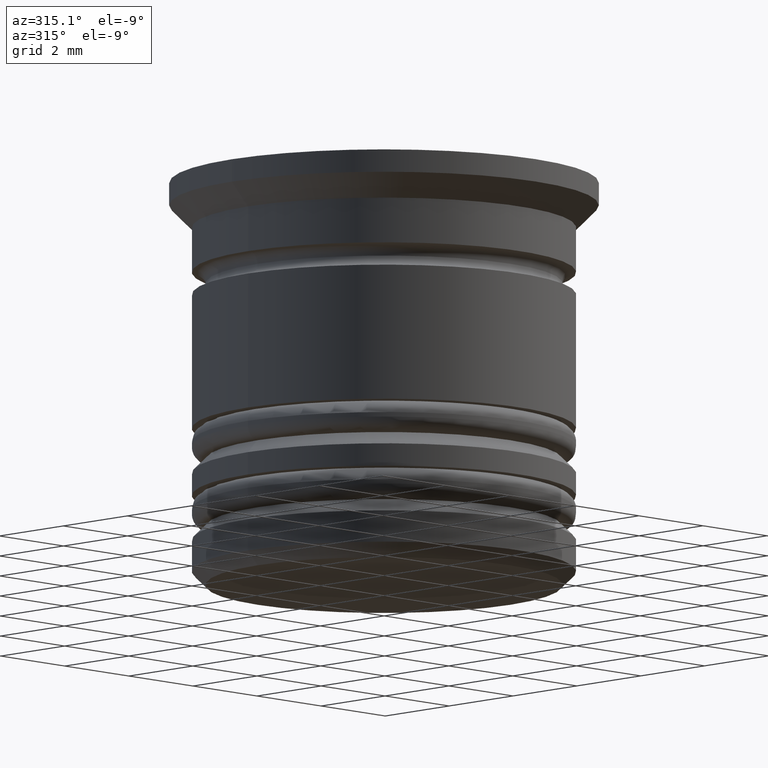
[diagram: clean part render]
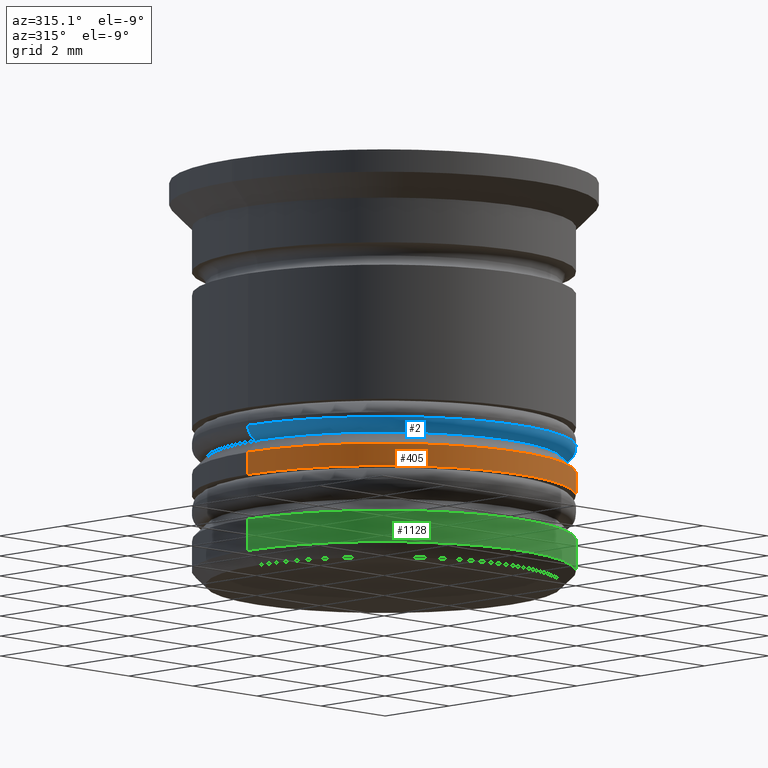
[diagram: same view with three faces highlighted in distinct colors, each labeled with its STEP entity id]
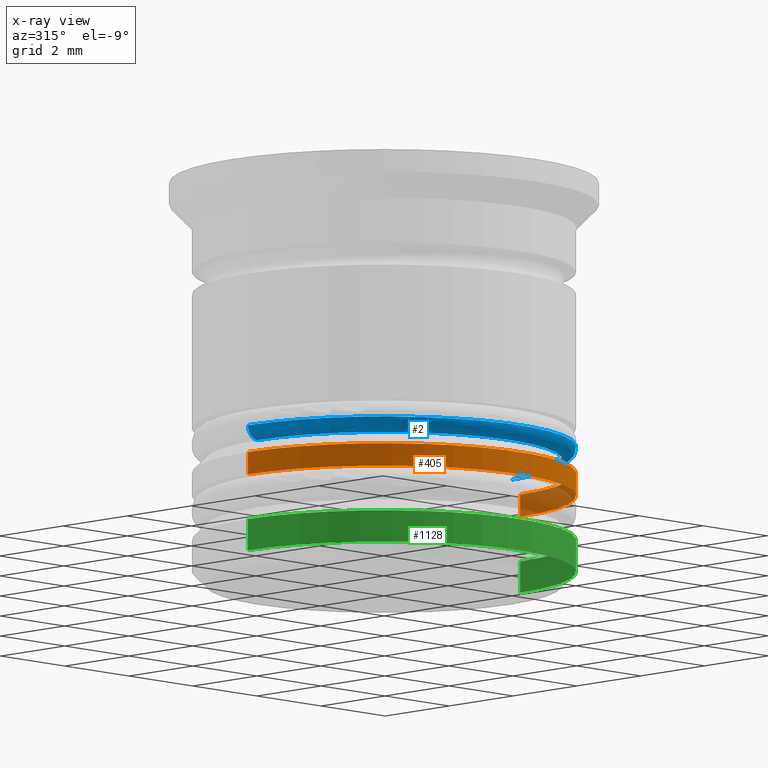
[diagram: x-ray of the same camera — body ghosted, the three highlighted faces saturated]
A machine part, auxiliary view with three faces highlighted in distinct colors.
The next image is the same camera in x-ray (body ghosted, the three faces saturated) — at least one of them is partly hidden behind the body in this view.
Their STEP definitions:

[orange] entity #405 — the highlighted cylindrical surface (partial cylindrical patch) has radius 4.25 mm, axis along (-0, -0, 1).
#11 = EDGE_CURVE ( 'NONE', #453, #1666, #1005, .T. ) ;
#172 = EDGE_CURVE ( 'NONE', #1295, #453, #1336, .T. ) ;
#200 = CARTESIAN_POINT ( 'NONE',  ( 4.250000000000000000, 0.000000000000000000, -6.999999999999997335 ) ) ;
#344 = ORIENTED_EDGE ( 'NONE', *, *, #172, .T. ) ;
#361 = CARTESIAN_POINT ( 'NONE',  ( 0.000000000000000000, 0.000000000000000000, -6.500000000000002665 ) ) ;
#405 = ADVANCED_FACE ( 'NONE', ( #1406 ), #2035, .T. ) ;
#453 = VERTEX_POINT ( 'NONE', #200 ) ;
#520 = DIRECTION ( 'NONE',  ( 0.000000000000000000, 0.000000000000000000, -1.000000000000000000 ) ) ;
#648 = CARTESIAN_POINT ( 'NONE',  ( -4.250000000000000000, 5.204748896376250699E-16, -6.999999999999997335 ) ) ;
#655 = DIRECTION ( 'NONE',  ( -0.000000000000000000, -0.000000000000000000, 1.000000000000000000 ) ) ;
#738 = VECTOR ( 'NONE', #655, 1000.000000000000000 ) ;
#811 = ORIENTED_EDGE ( 'NONE', *, *, #1868, .T. ) ;
#820 = CARTESIAN_POINT ( 'NONE',  ( 4.250000000000000000, 0.000000000000000000, -6.500000000000002665 ) ) ;
#876 = EDGE_CURVE ( 'NONE', #1295, #1165, #1346, .T. ) ;
#883 = DIRECTION ( 'NONE',  ( -0.000000000000000000, -0.000000000000000000, 1.000000000000000000 ) ) ;
#912 = VECTOR ( 'NONE', #1043, 1000.000000000000000 ) ;
#948 = AXIS2_PLACEMENT_3D ( 'NONE', #361, #520, #1808 ) ;
#980 = CIRCLE ( 'NONE', #948, 4.250000000000000000 ) ;
#1005 = LINE ( 'NONE', #1629, #738 ) ;
#1015 = EDGE_LOOP ( 'NONE', ( #1738, #344, #1347, #811 ) ) ;
#1043 = DIRECTION ( 'NONE',  ( -0.000000000000000000, -0.000000000000000000, 1.000000000000000000 ) ) ;
#1165 = VERTEX_POINT ( 'NONE', #1475 ) ;
#1167 = DIRECTION ( 'NONE',  ( 1.000000000000000000, 0.000000000000000000, 0.000000000000000000 ) ) ;
#1295 = VERTEX_POINT ( 'NONE', #648 ) ;
#1336 = CIRCLE ( 'NONE', #1925, 4.250000000000000000 ) ;
#1346 = LINE ( 'NONE', #1532, #912 ) ;
#1347 = ORIENTED_EDGE ( 'NONE', *, *, #11, .T. ) ;
#1406 = FACE_OUTER_BOUND ( 'NONE', #1015, .T. ) ;
#1463 = AXIS2_PLACEMENT_3D ( 'NONE', #1612, #1485, #1167 ) ;
#1475 = CARTESIAN_POINT ( 'NONE',  ( -4.250000000000000000, 5.204748896376250699E-16, -6.500000000000002665 ) ) ;
#1485 = DIRECTION ( 'NONE',  ( -0.000000000000000000, -0.000000000000000000, 1.000000000000000000 ) ) ;
#1532 = CARTESIAN_POINT ( 'NONE',  ( -4.250000000000000000, 5.204748896376250699E-16, 0.000000000000000000 ) ) ;
#1612 = CARTESIAN_POINT ( 'NONE',  ( 0.000000000000000000, 0.000000000000000000, 0.000000000000000000 ) ) ;
#1629 = CARTESIAN_POINT ( 'NONE',  ( 4.250000000000000000, 0.000000000000000000, 0.000000000000000000 ) ) ;
#1657 = DIRECTION ( 'NONE',  ( 1.000000000000000000, 0.000000000000000000, 0.000000000000000000 ) ) ;
#1664 = CARTESIAN_POINT ( 'NONE',  ( 0.000000000000000000, 0.000000000000000000, -6.999999999999997335 ) ) ;
#1666 = VERTEX_POINT ( 'NONE', #820 ) ;
#1738 = ORIENTED_EDGE ( 'NONE', *, *, #876, .F. ) ;
#1808 = DIRECTION ( 'NONE',  ( 1.000000000000000000, 0.000000000000000000, 0.000000000000000000 ) ) ;
#1868 = EDGE_CURVE ( 'NONE', #1666, #1165, #980, .T. ) ;
#1925 = AXIS2_PLACEMENT_3D ( 'NONE', #1664, #883, #1657 ) ;
#2035 = CYLINDRICAL_SURFACE ( 'NONE', #1463, 4.250000000000000000 ) ;

[blue] entity #2 — the highlighted toroidal blend (fillet) surface has major radius 3.95 mm and minor (blend) radius 0.3 mm.
#2 = ADVANCED_FACE ( 'NONE', ( #34 ), #1989, .T. ) ;
#29 = CARTESIAN_POINT ( 'NONE',  ( 3.950000000000000178, 0.000000000000000000, -5.900000000000003908 ) ) ;
#34 = FACE_OUTER_BOUND ( 'NONE', #1358, .T. ) ;
#36 = DIRECTION ( 'NONE',  ( 1.000000000000000000, 0.000000000000000000, 0.000000000000000000 ) ) ;
#44 = CARTESIAN_POINT ( 'NONE',  ( 0.000000000000000000, 0.000000000000000000, -5.900000000000003908 ) ) ;
#95 = DIRECTION ( 'NONE',  ( -1.000000000000000000, 1.224646799147353207E-16, 0.000000000000000000 ) ) ;
#249 = VERTEX_POINT ( 'NONE', #1103 ) ;
#376 = DIRECTION ( 'NONE',  ( 0.000000000000000000, 0.000000000000000000, 1.000000000000000000 ) ) ;
#397 = VERTEX_POINT ( 'NONE', #1144 ) ;
#466 = CARTESIAN_POINT ( 'NONE',  ( -3.950000000000000178, 5.021051876504148371E-16, -6.200000000000003730 ) ) ;
#545 = DIRECTION ( 'NONE',  ( 1.000000000000000000, 0.000000000000000000, 0.000000000000000000 ) ) ;
#573 = CARTESIAN_POINT ( 'NONE',  ( -3.950000000000000178, 4.837354856632045057E-16, -5.900000000000003908 ) ) ;
#619 = DIRECTION ( 'NONE',  ( 0.000000000000000000, -1.000000000000000000, 0.000000000000000000 ) ) ;
#621 = ORIENTED_EDGE ( 'NONE', *, *, #2006, .F. ) ;
#665 = DIRECTION ( 'NONE',  ( 1.000000000000000000, 0.000000000000000000, 0.000000000000000000 ) ) ;
#714 = CIRCLE ( 'NONE', #977, 3.950000000000000178 ) ;
#722 = ORIENTED_EDGE ( 'NONE', *, *, #1680, .T. ) ;
#733 = DIRECTION ( 'NONE',  ( 1.224646799147353207E-16, 1.000000000000000000, -0.000000000000000000 ) ) ;
#855 = AXIS2_PLACEMENT_3D ( 'NONE', #573, #733, #95 ) ;
#915 = AXIS2_PLACEMENT_3D ( 'NONE', #29, #619, #1102 ) ;
#977 = AXIS2_PLACEMENT_3D ( 'NONE', #1746, #1290, #36 ) ;
#1024 = CIRCLE ( 'NONE', #855, 0.2999999999999999334 ) ;
#1102 = DIRECTION ( 'NONE',  ( 0.000000000000000000, 0.000000000000000000, -1.000000000000000000 ) ) ;
#1103 = CARTESIAN_POINT ( 'NONE',  ( -4.250000000000000000, 5.204748896376250699E-16, -5.900000000000003908 ) ) ;
#1144 = CARTESIAN_POINT ( 'NONE',  ( 4.250000000000000000, 0.000000000000000000, -5.900000000000003908 ) ) ;
#1182 = AXIS2_PLACEMENT_3D ( 'NONE', #1872, #1958, #545 ) ;
#1255 = EDGE_CURVE ( 'NONE', #249, #397, #1807, .T. ) ;
#1290 = DIRECTION ( 'NONE',  ( -0.000000000000000000, -0.000000000000000000, -1.000000000000000000 ) ) ;
#1300 = EDGE_CURVE ( 'NONE', #1329, #1320, #714, .T. ) ;
#1320 = VERTEX_POINT ( 'NONE', #466 ) ;
#1329 = VERTEX_POINT ( 'NONE', #1596 ) ;
#1358 = EDGE_LOOP ( 'NONE', ( #621, #1618, #722, #1575 ) ) ;
#1525 = AXIS2_PLACEMENT_3D ( 'NONE', #44, #376, #665 ) ;
#1562 = CIRCLE ( 'NONE', #915, 0.2999999999999999334 ) ;
#1575 = ORIENTED_EDGE ( 'NONE', *, *, #1255, .F. ) ;
#1596 = CARTESIAN_POINT ( 'NONE',  ( 3.950000000000000178, 0.000000000000000000, -6.200000000000003730 ) ) ;
#1618 = ORIENTED_EDGE ( 'NONE', *, *, #1300, .F. ) ;
#1680 = EDGE_CURVE ( 'NONE', #1329, #397, #1562, .T. ) ;
#1746 = CARTESIAN_POINT ( 'NONE',  ( 0.000000000000000000, 0.000000000000000000, -6.200000000000003730 ) ) ;
#1807 = CIRCLE ( 'NONE', #1182, 4.250000000000000000 ) ;
#1872 = CARTESIAN_POINT ( 'NONE',  ( 0.000000000000000000, 0.000000000000000000, -5.900000000000003908 ) ) ;
#1958 = DIRECTION ( 'NONE',  ( 0.000000000000000000, 0.000000000000000000, 1.000000000000000000 ) ) ;
#1989 = TOROIDAL_SURFACE ( 'NONE', #1525, 3.950000000000000178, 0.2999999999999999889 ) ;
#2006 = EDGE_CURVE ( 'NONE', #1320, #249, #1024, .T. ) ;

[green] entity #1128 — the highlighted cylindrical surface (partial cylindrical patch) has radius 4.25 mm, axis along (-0, -0, 1).
#51 = DIRECTION ( 'NONE',  ( 1.000000000000000000, 0.000000000000000000, 0.000000000000000000 ) ) ;
#114 = LINE ( 'NONE', #1545, #1343 ) ;
#139 = DIRECTION ( 'NONE',  ( -0.000000000000000000, -0.000000000000000000, 1.000000000000000000 ) ) ;
#347 = AXIS2_PLACEMENT_3D ( 'NONE', #760, #958, #1876 ) ;
#400 = DIRECTION ( 'NONE',  ( 0.000000000000000000, 0.000000000000000000, -1.000000000000000000 ) ) ;
#411 = DIRECTION ( 'NONE',  ( -0.000000000000000000, -0.000000000000000000, 1.000000000000000000 ) ) ;
#421 = CARTESIAN_POINT ( 'NONE',  ( -4.250000000000000000, 5.204748896376250699E-16, -8.000000000000003553 ) ) ;
#443 = CARTESIAN_POINT ( 'NONE',  ( 4.250000000000000000, 0.000000000000000000, -8.000000000000003553 ) ) ;
#557 = ORIENTED_EDGE ( 'NONE', *, *, #853, .T. ) ;
#760 = CARTESIAN_POINT ( 'NONE',  ( 0.000000000000000000, 0.000000000000000000, -8.699999999999993960 ) ) ;
#853 = EDGE_CURVE ( 'NONE', #1547, #1183, #1831, .T. ) ;
#860 = VERTEX_POINT ( 'NONE', #421 ) ;
#870 = DIRECTION ( 'NONE',  ( -1.000000000000000000, 0.000000000000000000, 0.000000000000000000 ) ) ;
#874 = CARTESIAN_POINT ( 'NONE',  ( 4.250000000000000000, 0.000000000000000000, 0.000000000000000000 ) ) ;
#904 = CARTESIAN_POINT ( 'NONE',  ( 0.000000000000000000, 0.000000000000000000, -8.000000000000003553 ) ) ;
#938 = EDGE_CURVE ( 'NONE', #1469, #1547, #1669, .T. ) ;
#944 = CIRCLE ( 'NONE', #1016, 4.250000000000000000 ) ;
#958 = DIRECTION ( 'NONE',  ( -0.000000000000000000, -0.000000000000000000, 1.000000000000000000 ) ) ;
#965 = ORIENTED_EDGE ( 'NONE', *, *, #938, .T. ) ;
#985 = CARTESIAN_POINT ( 'NONE',  ( -4.250000000000000000, 5.204748896376250699E-16, -8.699999999999993960 ) ) ;
#1014 = VECTOR ( 'NONE', #411, 1000.000000000000000 ) ;
#1016 = AXIS2_PLACEMENT_3D ( 'NONE', #904, #400, #870 ) ;
#1128 = ADVANCED_FACE ( 'NONE', ( #1150 ), #1438, .T. ) ;
#1145 = ORIENTED_EDGE ( 'NONE', *, *, #1201, .T. ) ;
#1150 = FACE_OUTER_BOUND ( 'NONE', #1260, .T. ) ;
#1183 = VERTEX_POINT ( 'NONE', #443 ) ;
#1201 = EDGE_CURVE ( 'NONE', #1183, #860, #944, .T. ) ;
#1260 = EDGE_LOOP ( 'NONE', ( #1349, #965, #557, #1145 ) ) ;
#1285 = DIRECTION ( 'NONE',  ( -0.000000000000000000, -0.000000000000000000, 1.000000000000000000 ) ) ;
#1343 = VECTOR ( 'NONE', #139, 1000.000000000000000 ) ;
#1349 = ORIENTED_EDGE ( 'NONE', *, *, #1610, .F. ) ;
#1438 = CYLINDRICAL_SURFACE ( 'NONE', #1561, 4.250000000000000000 ) ;
#1469 = VERTEX_POINT ( 'NONE', #985 ) ;
#1536 = CARTESIAN_POINT ( 'NONE',  ( 4.250000000000000000, 0.000000000000000000, -8.699999999999993960 ) ) ;
#1545 = CARTESIAN_POINT ( 'NONE',  ( -4.250000000000000000, 5.204748896376250699E-16, 0.000000000000000000 ) ) ;
#1547 = VERTEX_POINT ( 'NONE', #1536 ) ;
#1561 = AXIS2_PLACEMENT_3D ( 'NONE', #1776, #1285, #51 ) ;
#1610 = EDGE_CURVE ( 'NONE', #1469, #860, #114, .T. ) ;
#1669 = CIRCLE ( 'NONE', #347, 4.250000000000000000 ) ;
#1776 = CARTESIAN_POINT ( 'NONE',  ( 0.000000000000000000, 0.000000000000000000, 0.000000000000000000 ) ) ;
#1831 = LINE ( 'NONE', #874, #1014 ) ;
#1876 = DIRECTION ( 'NONE',  ( -1.000000000000000000, 0.000000000000000000, 0.000000000000000000 ) ) ;